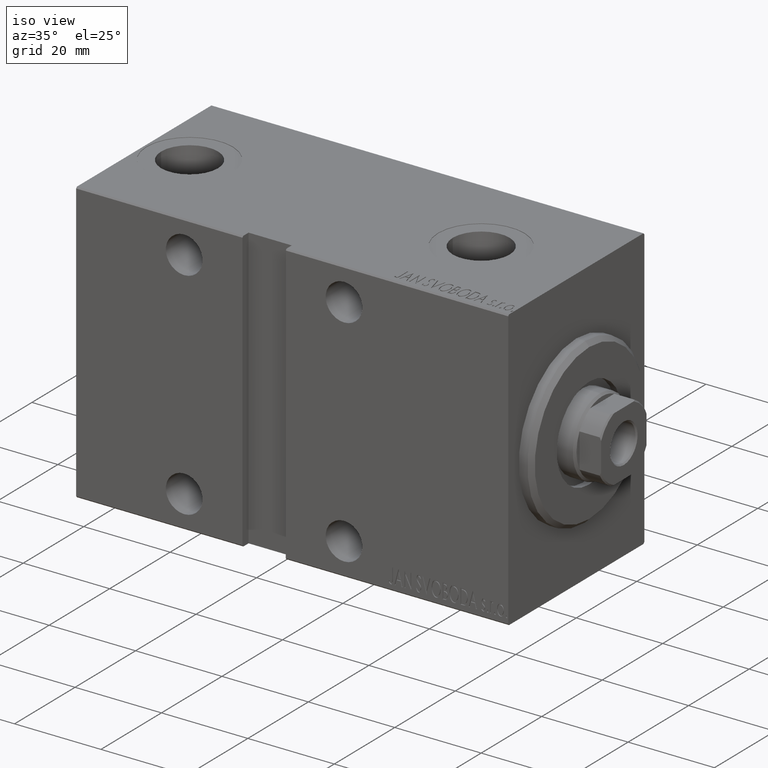
[diagram: clean part render]
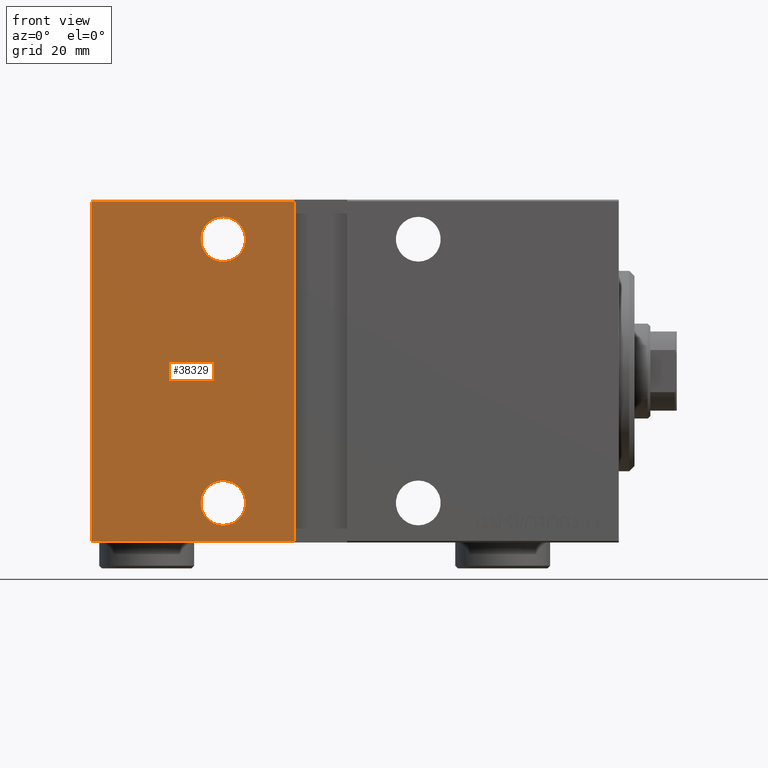
[diagram: tour spotlight — one face highlighted and labeled with its STEP entity id]
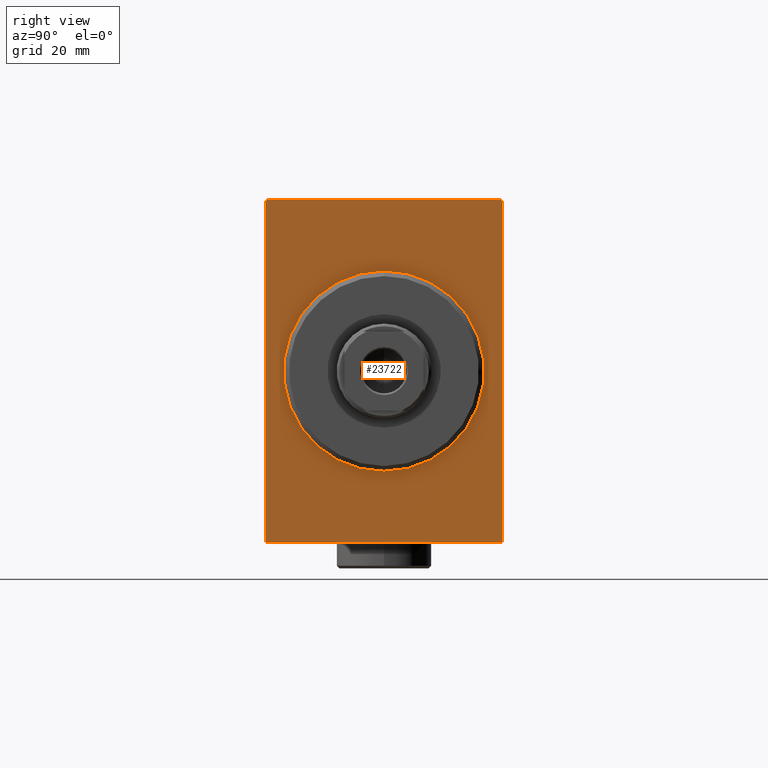
[diagram: tour spotlight — one face highlighted and labeled with its STEP entity id]
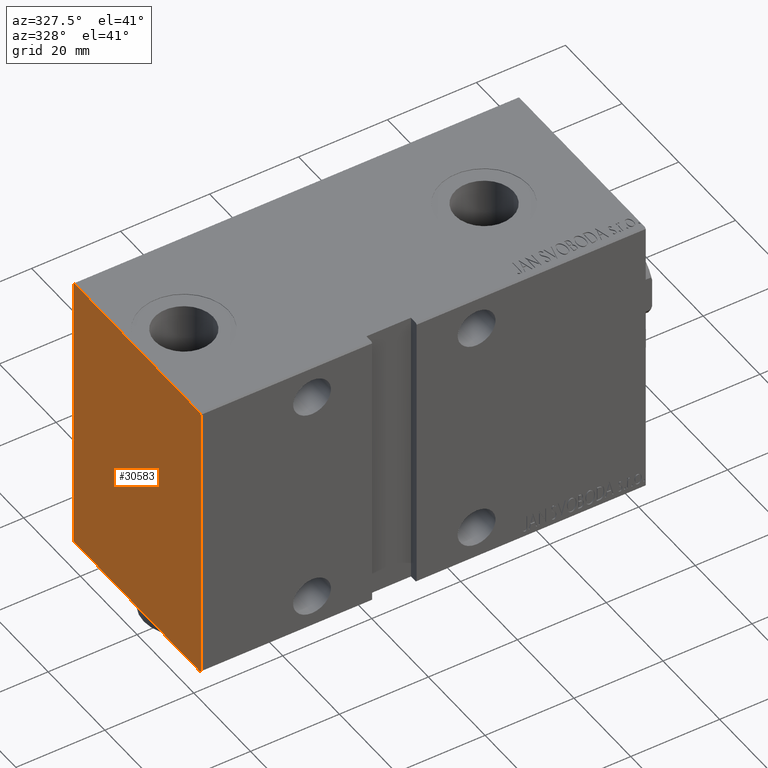
[diagram: tour spotlight — one face highlighted and labeled with its STEP entity id]
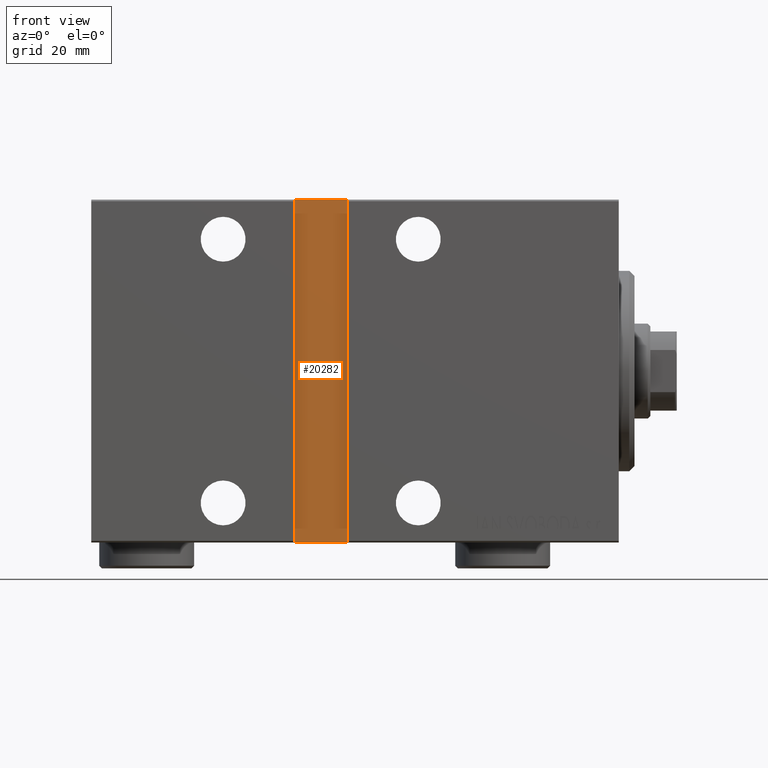
[diagram: tour spotlight — one face highlighted and labeled with its STEP entity id]
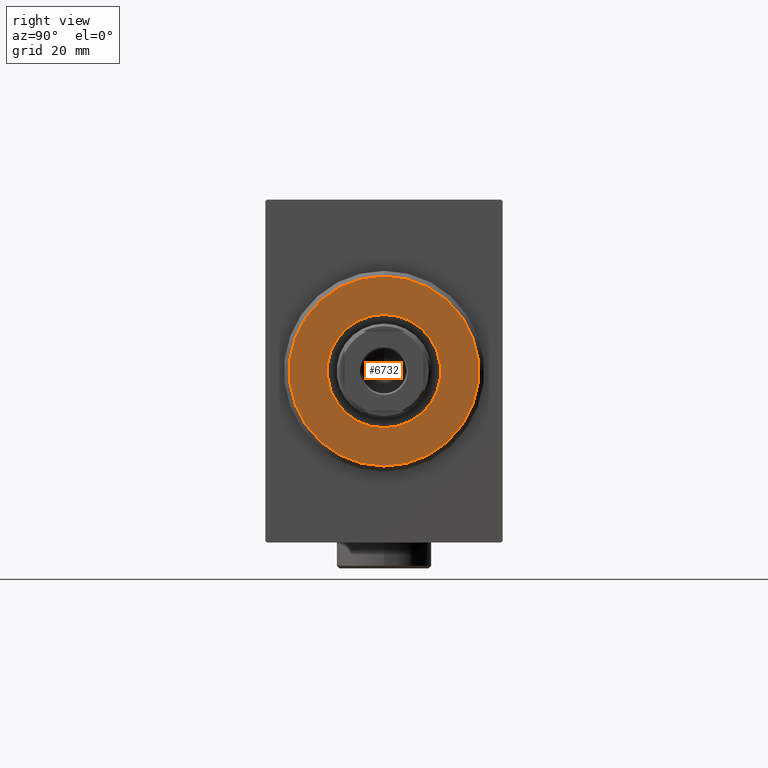
[diagram: tour spotlight — one face highlighted and labeled with its STEP entity id]
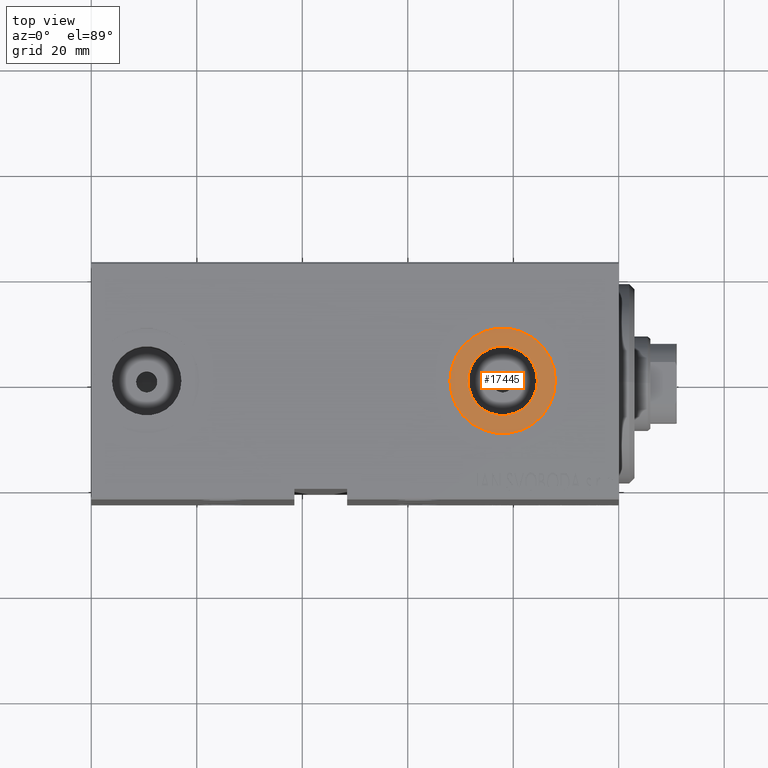
[diagram: tour spotlight — one face highlighted and labeled with its STEP entity id]
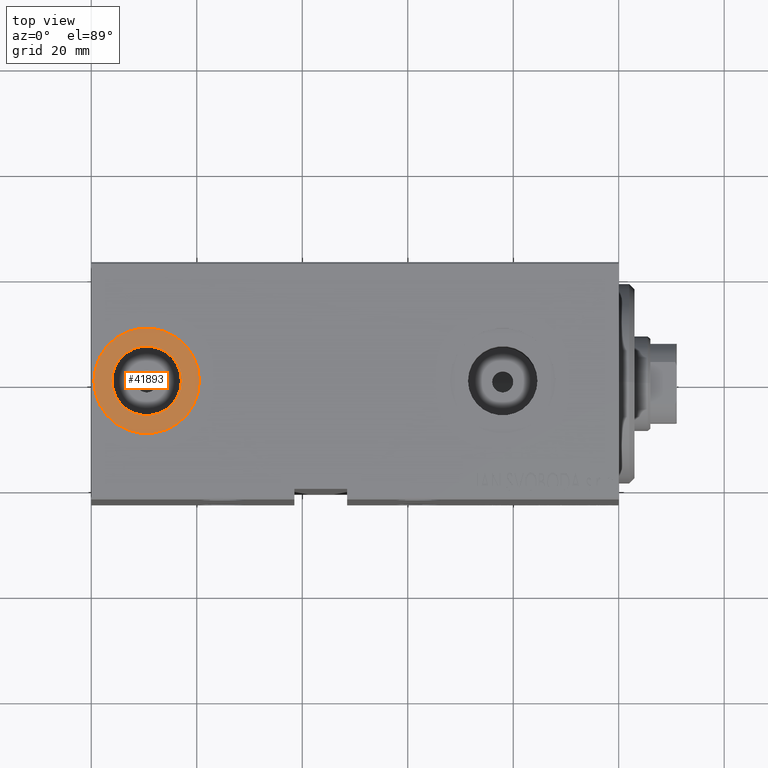
[diagram: tour spotlight — one face highlighted and labeled with its STEP entity id]
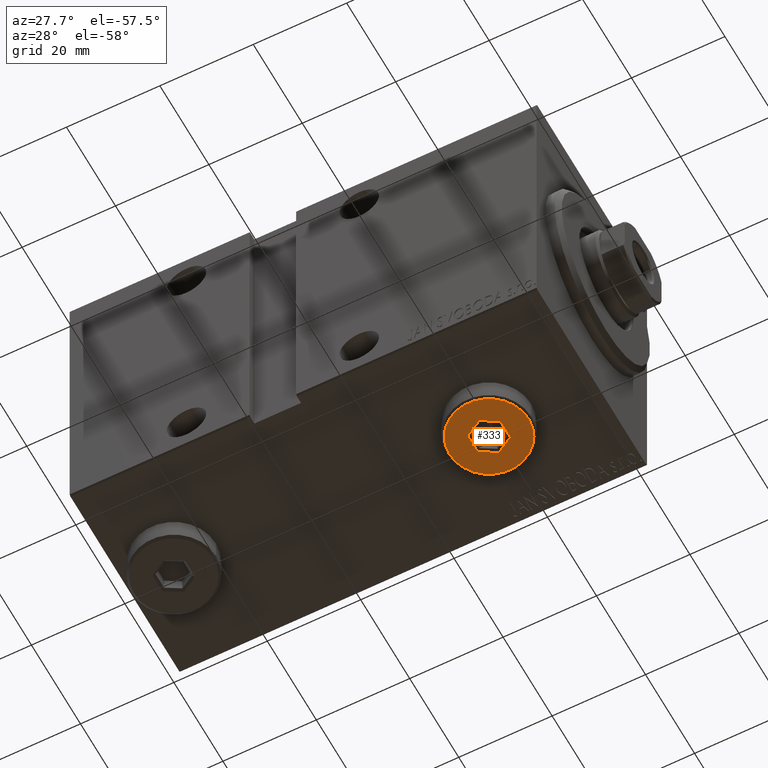
[diagram: tour spotlight — one face highlighted and labeled with its STEP entity id]
A machine part: a face-by-face anatomy tour. The part has 910 B-rep faces; the first image is the clean iso view, then the 8 largest visible faces are spotlighted one at a time (largest first), each with its STEP entity span.

Face 1 — front view, entity #38329. In plain terms, the highlighted planar face has unit normal (-0, 1, -0).
Definition (entity closure, byte-faithful):
#481 = ORIENTED_EDGE ( 'NONE', *, *, #11971, .T. ) ;
#963 = VECTOR ( 'NONE', #17823, 1000.000000000000000 ) ;
#2502 = LINE ( 'NONE', #16639, #18737 ) ;
#2863 = DIRECTION ( 'NONE',  ( 0.000000000000000000, 1.067522139062650425E-16, -1.000000000000000000 ) ) ;
#2949 = EDGE_CURVE ( 'NONE', #11771, #18945, #40380, .T. ) ;
#3146 = CARTESIAN_POINT ( 'NONE',  ( 75.00000000000001421, 22.50000000000000355, -20.74999999999999289 ) ) ;
#3225 = ORIENTED_EDGE ( 'NONE', *, *, #25154, .F. ) ;
#4456 = CARTESIAN_POINT ( 'NONE',  ( 75.00000000000001421, 22.50000000000000355, -24.99999999999999645 ) ) ;
#7932 = LINE ( 'NONE', #42534, #963 ) ;
#7950 = CARTESIAN_POINT ( 'NONE',  ( 75.00000000000001421, 22.49999999999999645, 20.75000000000000711 ) ) ;
#8953 = EDGE_LOOP ( 'NONE', ( #3225, #9044, #19598, #24880 ) ) ;
#9044 = ORIENTED_EDGE ( 'NONE', *, *, #41853, .T. ) ;
#9900 = DIRECTION ( 'NONE',  ( 0.000000000000000000, -1.067522139062650425E-16, 1.000000000000000000 ) ) ;
#11771 = VERTEX_POINT ( 'NONE', #30153 ) ;
#11971 = EDGE_CURVE ( 'NONE', #32949, #20351, #18537, .T. ) ;
#12045 = AXIS2_PLACEMENT_3D ( 'NONE', #29885, #36614, #19763 ) ;
#12170 = VERTEX_POINT ( 'NONE', #3146 ) ;
#12730 = FACE_OUTER_BOUND ( 'NONE', #8953, .T. ) ;
#12737 = DIRECTION ( 'NONE',  ( -0.000000000000000000, 1.067522139062650918E-16, -1.000000000000000000 ) ) ;
#15087 = VERTEX_POINT ( 'NONE', #18282 ) ;
#16339 = CARTESIAN_POINT ( 'NONE',  ( 61.50000000000001421, 22.50000000000000355, -32.49999999999995737 ) ) ;
#16551 = CARTESIAN_POINT ( 'NONE',  ( 100.0000000000000000, 22.50000000000000355, -32.50000000000000000 ) ) ;
#16639 = CARTESIAN_POINT ( 'NONE',  ( 100.0000000000000000, 22.50000000000000355, -32.50000000000000000 ) ) ;
#17393 = VERTEX_POINT ( 'NONE', #41120 ) ;
#17823 = DIRECTION ( 'NONE',  ( 1.000000000000000000, 0.000000000000000000, 0.000000000000000000 ) ) ;
#18105 = CARTESIAN_POINT ( 'NONE',  ( 61.50000000000001421, 22.50000000000000355, -32.19999999999998153 ) ) ;
#18282 = CARTESIAN_POINT ( 'NONE',  ( 100.0000000000000000, 22.49999999999999645, 32.19999999999998153 ) ) ;
#18537 = CIRCLE ( 'NONE', #12045, 4.250000000000003553 ) ;
#18737 = VECTOR ( 'NONE', #9900, 1000.000000000000000 ) ;
#18869 = CARTESIAN_POINT ( 'NONE',  ( 75.00000000000001421, 22.50000000000000355, -29.25000000000000000 ) ) ;
#18945 = VERTEX_POINT ( 'NONE', #18105 ) ;
#19598 = ORIENTED_EDGE ( 'NONE', *, *, #2949, .F. ) ;
#19740 = VECTOR ( 'NONE', #29818, 1000.000000000000000 ) ;
#19763 = DIRECTION ( 'NONE',  ( 0.000000000000000000, 0.000000000000000000, -1.000000000000000000 ) ) ;
#19818 = ORIENTED_EDGE ( 'NONE', *, *, #34326, .T. ) ;
#19844 = ORIENTED_EDGE ( 'NONE', *, *, #21559, .T. ) ;
#19919 = PLANE ( 'NONE',  #20387 ) ;
#20351 = VERTEX_POINT ( 'NONE', #7950 ) ;
#20387 = AXIS2_PLACEMENT_3D ( 'NONE', #16551, #33201, #2863 ) ;
#21112 = CARTESIAN_POINT ( 'NONE',  ( 75.00000000000001421, 22.50000000000000355, -24.99999999999999645 ) ) ;
#21559 = EDGE_CURVE ( 'NONE', #20351, #32949, #42325, .T. ) ;
#21730 = DIRECTION ( 'NONE',  ( 0.000000000000000000, -1.000000000000000000, -1.067522139062650425E-16 ) ) ;
#23142 = EDGE_LOOP ( 'NONE', ( #481, #19844 ) ) ;
#23145 = CIRCLE ( 'NONE', #33941, 4.250000000000003553 ) ;
#23290 = FACE_BOUND ( 'NONE', #23142, .T. ) ;
#24709 = DIRECTION ( 'NONE',  ( 0.000000000000000000, -1.000000000000000000, -1.067522139062650425E-16 ) ) ;
#24734 = VECTOR ( 'NONE', #12737, 1000.000000000000000 ) ;
#24880 = ORIENTED_EDGE ( 'NONE', *, *, #34994, .T. ) ;
#25154 = EDGE_CURVE ( 'NONE', #17393, #15087, #2502, .T. ) ;
#25802 = AXIS2_PLACEMENT_3D ( 'NONE', #27306, #29799, #37200 ) ;
#25923 = CIRCLE ( 'NONE', #37395, 4.250000000000003553 ) ;
#26357 = CARTESIAN_POINT ( 'NONE',  ( 75.00000000000001421, 22.49999999999999645, 29.25000000000001421 ) ) ;
#26445 = LINE ( 'NONE', #33417, #19740 ) ;
#27111 = FACE_BOUND ( 'NONE', #37387, .T. ) ;
#27306 = CARTESIAN_POINT ( 'NONE',  ( 75.00000000000001421, 22.49999999999999645, 25.00000000000001066 ) ) ;
#28481 = DIRECTION ( 'NONE',  ( 0.000000000000000000, 0.000000000000000000, -1.000000000000000000 ) ) ;
#29799 = DIRECTION ( 'NONE',  ( 0.000000000000000000, -1.000000000000000000, -1.067522139062650425E-16 ) ) ;
#29818 = DIRECTION ( 'NONE',  ( -1.000000000000000000, 0.000000000000000000, 0.000000000000000000 ) ) ;
#29885 = CARTESIAN_POINT ( 'NONE',  ( 75.00000000000001421, 22.49999999999999645, 25.00000000000001066 ) ) ;
#30058 = EDGE_CURVE ( 'NONE', #12170, #41508, #25923, .T. ) ;
#30153 = CARTESIAN_POINT ( 'NONE',  ( 61.50000000000001421, 22.49999999999999645, 32.19999999999998153 ) ) ;
#32949 = VERTEX_POINT ( 'NONE', #26357 ) ;
#33201 = DIRECTION ( 'NONE',  ( 0.000000000000000000, -1.000000000000000000, -1.067522139062650425E-16 ) ) ;
#33417 = CARTESIAN_POINT ( 'NONE',  ( 100.0000000000000000, 22.50000000000000355, -32.19999999999998153 ) ) ;
#33941 = AXIS2_PLACEMENT_3D ( 'NONE', #4456, #21730, #28481 ) ;
#34326 = EDGE_CURVE ( 'NONE', #41508, #12170, #23145, .T. ) ;
#34598 = DIRECTION ( 'NONE',  ( 0.000000000000000000, 0.000000000000000000, -1.000000000000000000 ) ) ;
#34994 = EDGE_CURVE ( 'NONE', #11771, #15087, #7932, .T. ) ;
#36614 = DIRECTION ( 'NONE',  ( 0.000000000000000000, -1.000000000000000000, -1.067522139062650425E-16 ) ) ;
#37200 = DIRECTION ( 'NONE',  ( 0.000000000000000000, 0.000000000000000000, -1.000000000000000000 ) ) ;
#37387 = EDGE_LOOP ( 'NONE', ( #41190, #19818 ) ) ;
#37395 = AXIS2_PLACEMENT_3D ( 'NONE', #21112, #24709, #34598 ) ;
#38329 = ADVANCED_FACE ( 'NONE', ( #27111, #23290, #12730 ), #19919, .F. ) ;
#40380 = LINE ( 'NONE', #16339, #24734 ) ;
#41120 = CARTESIAN_POINT ( 'NONE',  ( 100.0000000000000000, 22.50000000000000355, -32.19999999999998153 ) ) ;
#41190 = ORIENTED_EDGE ( 'NONE', *, *, #30058, .T. ) ;
#41508 = VERTEX_POINT ( 'NONE', #18869 ) ;
#41853 = EDGE_CURVE ( 'NONE', #17393, #18945, #26445, .T. ) ;
#42325 = CIRCLE ( 'NONE', #25802, 4.250000000000003553 ) ;
#42534 = CARTESIAN_POINT ( 'NONE',  ( 100.0000000000000000, 22.49999999999999645, 32.19999999999998153 ) ) ;

Face 2 — right view, entity #23722. In plain terms, the highlighted planar face has unit normal (-1, 0, 0).
Definition (entity closure, byte-faithful):
#486 = VECTOR ( 'NONE', #41249, 1000.000000000000114 ) ;
#1819 = LINE ( 'NONE', #12355, #7541 ) ;
#1983 = CARTESIAN_POINT ( 'NONE',  ( 0.000000000000000000, 22.50000000000000355, -32.19999999999998153 ) ) ;
#2043 = VECTOR ( 'NONE', #19328, 1000.000000000000114 ) ;
#2375 = EDGE_CURVE ( 'NONE', #22367, #28626, #33307, .T. ) ;
#3172 = DIRECTION ( 'NONE',  ( 0.000000000000000000, 0.000000000000000000, -1.000000000000000000 ) ) ;
#3394 = EDGE_CURVE ( 'NONE', #39692, #5322, #1819, .T. ) ;
#3642 = ORIENTED_EDGE ( 'NONE', *, *, #8353, .T. ) ;
#4740 = CARTESIAN_POINT ( 'NONE',  ( 0.000000000000000000, 22.49999999999999645, 32.19999999999998153 ) ) ;
#5322 = VERTEX_POINT ( 'NONE', #26232 ) ;
#5337 = DIRECTION ( 'NONE',  ( 0.000000000000000000, -1.067522139062650425E-16, 1.000000000000000000 ) ) ;
#5729 = LINE ( 'NONE', #19417, #20487 ) ;
#6196 = DIRECTION ( 'NONE',  ( 1.000000000000000000, 0.000000000000000000, 0.000000000000000000 ) ) ;
#6814 = ORIENTED_EDGE ( 'NONE', *, *, #16329, .T. ) ;
#7541 = VECTOR ( 'NONE', #15295, 1000.000000000000000 ) ;
#8353 = EDGE_CURVE ( 'NONE', #39692, #42336, #17425, .T. ) ;
#8640 = EDGE_LOOP ( 'NONE', ( #17272, #33033 ) ) ;
#8669 = AXIS2_PLACEMENT_3D ( 'NONE', #23037, #6196, #33609 ) ;
#8694 = LINE ( 'NONE', #22392, #15265 ) ;
#9260 = DIRECTION ( 'NONE',  ( 0.000000000000000000, -1.000000000000000000, -1.541976423090495633E-16 ) ) ;
#9307 = DIRECTION ( 'NONE',  ( 0.000000000000000000, 0.000000000000000000, -1.000000000000000000 ) ) ;
#10729 = CARTESIAN_POINT ( 'NONE',  ( 0.000000000000000000, 0.000000000000000000, 0.000000000000000000 ) ) ;
#12355 = CARTESIAN_POINT ( 'NONE',  ( 0.000000000000000000, -22.49999999999999645, -32.50000000000000000 ) ) ;
#12580 = CARTESIAN_POINT ( 'NONE',  ( 0.000000000000000000, 22.19999999999997442, 32.50000000000000711 ) ) ;
#13059 = CARTESIAN_POINT ( 'NONE',  ( 0.000000000000000000, 22.49999999999999645, 32.50000000000000711 ) ) ;
#13514 = CARTESIAN_POINT ( 'NONE',  ( 0.000000000000000000, -22.19999999999996021, 32.50000000000000000 ) ) ;
#14368 = VERTEX_POINT ( 'NONE', #37504 ) ;
#14988 = CARTESIAN_POINT ( 'NONE',  ( 0.000000000000000000, 22.50000000000000355, -32.19999999999998153 ) ) ;
#15265 = VECTOR ( 'NONE', #5337, 1000.000000000000000 ) ;
#15295 = DIRECTION ( 'NONE',  ( 0.000000000000000000, 1.000000000000000000, 0.000000000000000000 ) ) ;
#15395 = VECTOR ( 'NONE', #9260, 1000.000000000000000 ) ;
#15637 = ORIENTED_EDGE ( 'NONE', *, *, #39911, .T. ) ;
#16329 = EDGE_CURVE ( 'NONE', #22367, #23023, #42941, .T. ) ;
#17186 = FACE_OUTER_BOUND ( 'NONE', #29277, .T. ) ;
#17272 = ORIENTED_EDGE ( 'NONE', *, *, #24642, .T. ) ;
#17425 = LINE ( 'NONE', #27537, #486 ) ;
#18185 = ORIENTED_EDGE ( 'NONE', *, *, #3394, .F. ) ;
#18633 = DIRECTION ( 'NONE',  ( -0.000000000000000000, 0.7071067811865474617, 0.7071067811865474617 ) ) ;
#18975 = CARTESIAN_POINT ( 'NONE',  ( 0.000000000000000000, 22.19999999999997442, 32.50000000000000711 ) ) ;
#19328 = DIRECTION ( 'NONE',  ( -0.000000000000000000, 0.7071067811865392461, -0.7071067811865556774 ) ) ;
#19417 = CARTESIAN_POINT ( 'NONE',  ( 0.000000000000000000, -22.49999999999999645, 32.50000000000000000 ) ) ;
#19510 = CARTESIAN_POINT ( 'NONE',  ( 0.000000000000000000, -22.19999999999997442, -32.50000000000000000 ) ) ;
#20129 = ORIENTED_EDGE ( 'NONE', *, *, #41126, .F. ) ;
#20487 = VECTOR ( 'NONE', #9307, 1000.000000000000000 ) ;
#21068 = DIRECTION ( 'NONE',  ( 0.000000000000000000, -0.7071067811865474617, -0.7071067811865474617 ) ) ;
#21102 = EDGE_CURVE ( 'NONE', #21622, #28626, #43345, .T. ) ;
#21622 = VERTEX_POINT ( 'NONE', #38759 ) ;
#21830 = VERTEX_POINT ( 'NONE', #28151 ) ;
#22367 = VERTEX_POINT ( 'NONE', #18975 ) ;
#22392 = CARTESIAN_POINT ( 'NONE',  ( 0.000000000000000000, 22.50000000000000355, -32.50000000000000000 ) ) ;
#22995 = AXIS2_PLACEMENT_3D ( 'NONE', #10729, #41289, #41743 ) ;
#23023 = VERTEX_POINT ( 'NONE', #4740 ) ;
#23037 = CARTESIAN_POINT ( 'NONE',  ( 0.000000000000000000, 0.000000000000000000, 0.000000000000000000 ) ) ;
#23722 = ADVANCED_FACE ( 'NONE', ( #36965, #17186 ), #40122, .F. ) ;
#24275 = DIRECTION ( 'NONE',  ( 1.000000000000000000, 0.000000000000000000, 0.000000000000000000 ) ) ;
#24642 = EDGE_CURVE ( 'NONE', #14368, #21830, #42392, .T. ) ;
#24893 = LINE ( 'NONE', #14988, #32658 ) ;
#26232 = CARTESIAN_POINT ( 'NONE',  ( 0.000000000000000000, 22.19999999999996732, -32.50000000000000000 ) ) ;
#27537 = CARTESIAN_POINT ( 'NONE',  ( 0.000000000000000000, -22.19999999999997442, -32.50000000000000000 ) ) ;
#28151 = CARTESIAN_POINT ( 'NONE',  ( 0.000000000000000000, 2.265596578422602213E-15, -18.49999999999998934 ) ) ;
#28626 = VERTEX_POINT ( 'NONE', #13514 ) ;
#29193 = CARTESIAN_POINT ( 'NONE',  ( 0.000000000000000000, -22.49999999999999645, 32.19999999999998153 ) ) ;
#29277 = EDGE_LOOP ( 'NONE', ( #38034, #6814, #30832, #15637, #18185, #3642, #20129, #33410 ) ) ;
#30832 = ORIENTED_EDGE ( 'NONE', *, *, #34444, .F. ) ;
#32658 = VECTOR ( 'NONE', #21068, 1000.000000000000114 ) ;
#33033 = ORIENTED_EDGE ( 'NONE', *, *, #40306, .T. ) ;
#33307 = LINE ( 'NONE', #13059, #15395 ) ;
#33410 = ORIENTED_EDGE ( 'NONE', *, *, #21102, .T. ) ;
#33609 = DIRECTION ( 'NONE',  ( 0.000000000000000000, 0.000000000000000000, -1.000000000000000000 ) ) ;
#34023 = CARTESIAN_POINT ( 'NONE',  ( 0.000000000000000000, -22.49999999999999645, -32.19999999999998153 ) ) ;
#34444 = EDGE_CURVE ( 'NONE', #39131, #23023, #8694, .T. ) ;
#36237 = CIRCLE ( 'NONE', #41244, 18.49999999999998934 ) ;
#36965 = FACE_BOUND ( 'NONE', #8640, .T. ) ;
#37504 = CARTESIAN_POINT ( 'NONE',  ( 0.000000000000000000, 0.000000000000000000, 18.49999999999998934 ) ) ;
#38034 = ORIENTED_EDGE ( 'NONE', *, *, #2375, .F. ) ;
#38759 = CARTESIAN_POINT ( 'NONE',  ( 0.000000000000000000, -22.49999999999999645, 32.19999999999998153 ) ) ;
#39131 = VERTEX_POINT ( 'NONE', #1983 ) ;
#39472 = VECTOR ( 'NONE', #18633, 1000.000000000000114 ) ;
#39692 = VERTEX_POINT ( 'NONE', #19510 ) ;
#39911 = EDGE_CURVE ( 'NONE', #39131, #5322, #24893, .T. ) ;
#40122 = PLANE ( 'NONE',  #8669 ) ;
#40306 = EDGE_CURVE ( 'NONE', #21830, #14368, #36237, .T. ) ;
#41126 = EDGE_CURVE ( 'NONE', #21622, #42336, #5729, .T. ) ;
#41135 = CARTESIAN_POINT ( 'NONE',  ( 0.000000000000000000, 0.000000000000000000, 0.000000000000000000 ) ) ;
#41244 = AXIS2_PLACEMENT_3D ( 'NONE', #41135, #24275, #3172 ) ;
#41249 = DIRECTION ( 'NONE',  ( -0.000000000000000000, -0.7071067811865474617, 0.7071067811865474617 ) ) ;
#41289 = DIRECTION ( 'NONE',  ( 1.000000000000000000, 0.000000000000000000, 0.000000000000000000 ) ) ;
#41743 = DIRECTION ( 'NONE',  ( 0.000000000000000000, 0.000000000000000000, -1.000000000000000000 ) ) ;
#42336 = VERTEX_POINT ( 'NONE', #34023 ) ;
#42392 = CIRCLE ( 'NONE', #22995, 18.49999999999998934 ) ;
#42941 = LINE ( 'NONE', #12580, #2043 ) ;
#43345 = LINE ( 'NONE', #29193, #39472 ) ;

Face 3 — auxiliary view, entity #30583. In plain terms, the highlighted planar face has unit normal (-1, 0, 0).
Definition (entity closure, byte-faithful):
#17 = LINE ( 'NONE', #34846, #17477 ) ;
#544 = LINE ( 'NONE', #42119, #27845 ) ;
#2495 = EDGE_LOOP ( 'NONE', ( #22962, #31943, #42704, #38968, #34360, #26947, #12865, #17148 ) ) ;
#2502 = LINE ( 'NONE', #16639, #18737 ) ;
#3076 = CARTESIAN_POINT ( 'NONE',  ( 100.0000000000000000, -22.49999999999999645, -32.19999999999998153 ) ) ;
#3197 = DIRECTION ( 'NONE',  ( 0.000000000000000000, 1.000000000000000000, 0.000000000000000000 ) ) ;
#3213 = EDGE_CURVE ( 'NONE', #8605, #30556, #10155, .T. ) ;
#4480 = VERTEX_POINT ( 'NONE', #3076 ) ;
#7554 = LINE ( 'NONE', #31595, #24794 ) ;
#8605 = VERTEX_POINT ( 'NONE', #43689 ) ;
#9900 = DIRECTION ( 'NONE',  ( 0.000000000000000000, -1.067522139062650425E-16, 1.000000000000000000 ) ) ;
#10155 = LINE ( 'NONE', #26786, #10396 ) ;
#10396 = VECTOR ( 'NONE', #19814, 1000.000000000000114 ) ;
#11146 = DIRECTION ( 'NONE',  ( -0.000000000000000000, 0.7071067811865474617, 0.7071067811865474617 ) ) ;
#11665 = VECTOR ( 'NONE', #11709, 1000.000000000000000 ) ;
#11709 = DIRECTION ( 'NONE',  ( 0.000000000000000000, -1.000000000000000000, -1.541976423090495633E-16 ) ) ;
#11766 = FACE_OUTER_BOUND ( 'NONE', #2495, .T. ) ;
#11793 = EDGE_CURVE ( 'NONE', #13638, #19884, #26120, .T. ) ;
#12865 = ORIENTED_EDGE ( 'NONE', *, *, #16004, .T. ) ;
#13638 = VERTEX_POINT ( 'NONE', #22621 ) ;
#13709 = DIRECTION ( 'NONE',  ( -0.000000000000000000, -0.7071067811865392461, 0.7071067811865556774 ) ) ;
#15087 = VERTEX_POINT ( 'NONE', #18282 ) ;
#15964 = EDGE_CURVE ( 'NONE', #4480, #13638, #21880, .T. ) ;
#16004 = EDGE_CURVE ( 'NONE', #30556, #4480, #544, .T. ) ;
#16350 = VECTOR ( 'NONE', #17622, 1000.000000000000114 ) ;
#16639 = CARTESIAN_POINT ( 'NONE',  ( 100.0000000000000000, 22.50000000000000355, -32.50000000000000000 ) ) ;
#17148 = ORIENTED_EDGE ( 'NONE', *, *, #15964, .T. ) ;
#17393 = VERTEX_POINT ( 'NONE', #41120 ) ;
#17477 = VECTOR ( 'NONE', #13709, 1000.000000000000114 ) ;
#17622 = DIRECTION ( 'NONE',  ( -0.000000000000000000, 0.7071067811865474617, -0.7071067811865474617 ) ) ;
#17690 = VERTEX_POINT ( 'NONE', #26692 ) ;
#18282 = CARTESIAN_POINT ( 'NONE',  ( 100.0000000000000000, 22.49999999999999645, 32.19999999999998153 ) ) ;
#18737 = VECTOR ( 'NONE', #9900, 1000.000000000000000 ) ;
#19814 = DIRECTION ( 'NONE',  ( 0.000000000000000000, -0.7071067811865474617, -0.7071067811865474617 ) ) ;
#19884 = VERTEX_POINT ( 'NONE', #28892 ) ;
#21671 = CARTESIAN_POINT ( 'NONE',  ( 100.0000000000000000, 0.000000000000000000, 0.000000000000000000 ) ) ;
#21880 = LINE ( 'NONE', #38516, #16350 ) ;
#22621 = CARTESIAN_POINT ( 'NONE',  ( 100.0000000000000000, -22.19999999999997442, -32.50000000000000000 ) ) ;
#22962 = ORIENTED_EDGE ( 'NONE', *, *, #11793, .T. ) ;
#24794 = VECTOR ( 'NONE', #11146, 1000.000000000000114 ) ;
#25154 = EDGE_CURVE ( 'NONE', #17393, #15087, #2502, .T. ) ;
#25490 = DIRECTION ( 'NONE',  ( 0.000000000000000000, 0.000000000000000000, -1.000000000000000000 ) ) ;
#26120 = LINE ( 'NONE', #36884, #35037 ) ;
#26692 = CARTESIAN_POINT ( 'NONE',  ( 100.0000000000000000, 22.19999999999997442, 32.50000000000000711 ) ) ;
#26786 = CARTESIAN_POINT ( 'NONE',  ( 100.0000000000000000, -27.34999999999998721, 27.34999999999998721 ) ) ;
#26947 = ORIENTED_EDGE ( 'NONE', *, *, #3213, .T. ) ;
#27845 = VECTOR ( 'NONE', #35146, 1000.000000000000000 ) ;
#28801 = LINE ( 'NONE', #29022, #11665 ) ;
#28892 = CARTESIAN_POINT ( 'NONE',  ( 100.0000000000000000, 22.19999999999996732, -32.50000000000000000 ) ) ;
#29022 = CARTESIAN_POINT ( 'NONE',  ( 100.0000000000000000, 22.49999999999999645, 32.50000000000000711 ) ) ;
#30556 = VERTEX_POINT ( 'NONE', #32236 ) ;
#30583 = ADVANCED_FACE ( 'NONE', ( #11766 ), #31789, .T. ) ;
#31595 = CARTESIAN_POINT ( 'NONE',  ( 100.0000000000000000, 27.34999999999999076, -27.34999999999999076 ) ) ;
#31789 = PLANE ( 'NONE',  #43889 ) ;
#31943 = ORIENTED_EDGE ( 'NONE', *, *, #42104, .T. ) ;
#32236 = CARTESIAN_POINT ( 'NONE',  ( 100.0000000000000000, -22.49999999999999645, 32.19999999999998153 ) ) ;
#34026 = EDGE_CURVE ( 'NONE', #17690, #8605, #28801, .T. ) ;
#34360 = ORIENTED_EDGE ( 'NONE', *, *, #34026, .T. ) ;
#34846 = CARTESIAN_POINT ( 'NONE',  ( 100.0000000000000000, 27.35000000000025011, 27.34999999999961418 ) ) ;
#35037 = VECTOR ( 'NONE', #3197, 1000.000000000000000 ) ;
#35146 = DIRECTION ( 'NONE',  ( 0.000000000000000000, 0.000000000000000000, -1.000000000000000000 ) ) ;
#35376 = DIRECTION ( 'NONE',  ( 1.000000000000000000, 0.000000000000000000, 0.000000000000000000 ) ) ;
#36884 = CARTESIAN_POINT ( 'NONE',  ( 100.0000000000000000, -22.49999999999999645, -32.50000000000000000 ) ) ;
#37063 = EDGE_CURVE ( 'NONE', #15087, #17690, #17, .T. ) ;
#38516 = CARTESIAN_POINT ( 'NONE',  ( 100.0000000000000000, -27.34999999999998721, -27.34999999999998721 ) ) ;
#38968 = ORIENTED_EDGE ( 'NONE', *, *, #37063, .T. ) ;
#41120 = CARTESIAN_POINT ( 'NONE',  ( 100.0000000000000000, 22.50000000000000355, -32.19999999999998153 ) ) ;
#42104 = EDGE_CURVE ( 'NONE', #19884, #17393, #7554, .T. ) ;
#42119 = CARTESIAN_POINT ( 'NONE',  ( 100.0000000000000000, -22.49999999999999645, 32.50000000000000000 ) ) ;
#42704 = ORIENTED_EDGE ( 'NONE', *, *, #25154, .T. ) ;
#43689 = CARTESIAN_POINT ( 'NONE',  ( 100.0000000000000000, -22.19999999999996021, 32.50000000000000000 ) ) ;
#43889 = AXIS2_PLACEMENT_3D ( 'NONE', #21671, #35376, #25490 ) ;

Face 4 — front view, entity #20282. In plain terms, the highlighted planar face has unit normal (-0, 1, -0).
Definition (entity closure, byte-faithful):
#1007 = CARTESIAN_POINT ( 'NONE',  ( 61.50000000000001421, 20.49999999999999645, 32.50000000000000711 ) ) ;
#2187 = DIRECTION ( 'NONE',  ( 0.000000000000000000, -1.067522139062650918E-16, 1.000000000000000000 ) ) ;
#3843 = ORIENTED_EDGE ( 'NONE', *, *, #38348, .T. ) ;
#6766 = VECTOR ( 'NONE', #9816, 1000.000000000000000 ) ;
#7278 = CARTESIAN_POINT ( 'NONE',  ( 61.50000000000001421, 20.50000000000000355, -32.49999999999995737 ) ) ;
#8207 = EDGE_CURVE ( 'NONE', #9837, #9597, #19243, .T. ) ;
#9096 = CARTESIAN_POINT ( 'NONE',  ( 51.50000000000000711, 20.49999999999999645, 32.50000000000000711 ) ) ;
#9597 = VERTEX_POINT ( 'NONE', #9096 ) ;
#9816 = DIRECTION ( 'NONE',  ( -1.000000000000000000, 0.000000000000000000, 0.000000000000000000 ) ) ;
#9837 = VERTEX_POINT ( 'NONE', #24574 ) ;
#12432 = CARTESIAN_POINT ( 'NONE',  ( 61.50000000000001421, 20.50000000000000711, -32.50000000000000000 ) ) ;
#14899 = FACE_OUTER_BOUND ( 'NONE', #26465, .T. ) ;
#15126 = DIRECTION ( 'NONE',  ( 0.000000000000000000, -1.000000000000000000, -1.067522139062650918E-16 ) ) ;
#15208 = EDGE_CURVE ( 'NONE', #42282, #24693, #24580, .T. ) ;
#16331 = CARTESIAN_POINT ( 'NONE',  ( 61.50000000000001421, 20.50000000000000355, -32.49999999999995737 ) ) ;
#18304 = LINE ( 'NONE', #1007, #41774 ) ;
#19243 = LINE ( 'NONE', #32968, #36363 ) ;
#20282 = ADVANCED_FACE ( 'NONE', ( #14899 ), #25026, .F. ) ;
#20752 = AXIS2_PLACEMENT_3D ( 'NONE', #24806, #15126, #31988 ) ;
#22858 = ORIENTED_EDGE ( 'NONE', *, *, #31454, .T. ) ;
#24574 = CARTESIAN_POINT ( 'NONE',  ( 51.50000000000000711, 20.50000000000000355, -32.49999999999995737 ) ) ;
#24580 = LINE ( 'NONE', #7278, #42919 ) ;
#24693 = VERTEX_POINT ( 'NONE', #12432 ) ;
#24806 = CARTESIAN_POINT ( 'NONE',  ( 0.000000000000000000, 20.49999999999999645, 2.149601398203428657E-15 ) ) ;
#25026 = PLANE ( 'NONE',  #20752 ) ;
#26465 = EDGE_LOOP ( 'NONE', ( #36906, #22858, #42510, #3843 ) ) ;
#28864 = DIRECTION ( 'NONE',  ( 1.000000000000000000, -0.000000000000000000, -0.000000000000000000 ) ) ;
#31454 = EDGE_CURVE ( 'NONE', #9597, #42282, #18304, .T. ) ;
#31549 = DIRECTION ( 'NONE',  ( -0.000000000000000000, 1.067522139062650918E-16, -1.000000000000000000 ) ) ;
#31988 = DIRECTION ( 'NONE',  ( 0.000000000000000000, 1.067522139062650918E-16, -1.000000000000000000 ) ) ;
#32968 = CARTESIAN_POINT ( 'NONE',  ( 51.50000000000000711, 20.50000000000000355, -32.49999999999995737 ) ) ;
#36363 = VECTOR ( 'NONE', #2187, 1000.000000000000000 ) ;
#36906 = ORIENTED_EDGE ( 'NONE', *, *, #8207, .T. ) ;
#37161 = CARTESIAN_POINT ( 'NONE',  ( 61.50000000000001421, 20.49999999999999645, 32.50000000000000711 ) ) ;
#38348 = EDGE_CURVE ( 'NONE', #24693, #9837, #40596, .T. ) ;
#40596 = LINE ( 'NONE', #16331, #6766 ) ;
#41774 = VECTOR ( 'NONE', #28864, 1000.000000000000000 ) ;
#42282 = VERTEX_POINT ( 'NONE', #37161 ) ;
#42510 = ORIENTED_EDGE ( 'NONE', *, *, #15208, .T. ) ;
#42919 = VECTOR ( 'NONE', #31549, 1000.000000000000000 ) ;

Face 5 — right view, entity #6732. In plain terms, the highlighted planar face has unit normal (1, 0, 0).
Definition (entity closure, byte-faithful):
#49 = FACE_OUTER_BOUND ( 'NONE', #12290, .T. ) ;
#164 = AXIS2_PLACEMENT_3D ( 'NONE', #41275, #14080, #24421 ) ;
#950 = DIRECTION ( 'NONE',  ( 1.000000000000000000, -0.000000000000000000, 0.000000000000000000 ) ) ;
#1811 = CARTESIAN_POINT ( 'NONE',  ( 3.000000000000000000, 2.265596578422603002E-15, -17.99999999999999645 ) ) ;
#1989 = CARTESIAN_POINT ( 'NONE',  ( 3.000000000000000000, 1.316495309083404223E-15, -10.75000000000000000 ) ) ;
#2491 = EDGE_CURVE ( 'NONE', #4815, #11326, #13944, .T. ) ;
#2771 = DIRECTION ( 'NONE',  ( 1.000000000000000000, -0.000000000000000000, 0.000000000000000000 ) ) ;
#4815 = VERTEX_POINT ( 'NONE', #1811 ) ;
#5217 = CIRCLE ( 'NONE', #164, 10.75000000000000000 ) ;
#6010 = VERTEX_POINT ( 'NONE', #1989 ) ;
#6060 = ORIENTED_EDGE ( 'NONE', *, *, #2491, .T. ) ;
#6078 = ORIENTED_EDGE ( 'NONE', *, *, #29319, .T. ) ;
#6732 = ADVANCED_FACE ( 'NONE', ( #49, #43883 ), #23647, .T. ) ;
#8138 = CARTESIAN_POINT ( 'NONE',  ( 3.000000000000000000, 0.000000000000000000, 10.75000000000000000 ) ) ;
#10850 = EDGE_CURVE ( 'NONE', #24151, #6010, #13463, .T. ) ;
#11282 = DIRECTION ( 'NONE',  ( 0.000000000000000000, 0.000000000000000000, -1.000000000000000000 ) ) ;
#11326 = VERTEX_POINT ( 'NONE', #36503 ) ;
#12290 = EDGE_LOOP ( 'NONE', ( #25181, #6060 ) ) ;
#13350 = ORIENTED_EDGE ( 'NONE', *, *, #10850, .T. ) ;
#13463 = CIRCLE ( 'NONE', #24960, 10.75000000000000000 ) ;
#13944 = CIRCLE ( 'NONE', #16104, 17.99999999999999645 ) ;
#14080 = DIRECTION ( 'NONE',  ( -1.000000000000000000, 0.000000000000000000, -0.000000000000000000 ) ) ;
#16104 = AXIS2_PLACEMENT_3D ( 'NONE', #24745, #20697, #24971 ) ;
#20697 = DIRECTION ( 'NONE',  ( 1.000000000000000000, -0.000000000000000000, 0.000000000000000000 ) ) ;
#23049 = CIRCLE ( 'NONE', #40285, 17.99999999999999645 ) ;
#23624 = CARTESIAN_POINT ( 'NONE',  ( 3.000000000000000000, 0.000000000000000000, 0.000000000000000000 ) ) ;
#23647 = PLANE ( 'NONE',  #24872 ) ;
#24151 = VERTEX_POINT ( 'NONE', #8138 ) ;
#24421 = DIRECTION ( 'NONE',  ( 0.000000000000000000, 0.000000000000000000, -1.000000000000000000 ) ) ;
#24745 = CARTESIAN_POINT ( 'NONE',  ( 3.000000000000000000, 0.000000000000000000, 0.000000000000000000 ) ) ;
#24872 = AXIS2_PLACEMENT_3D ( 'NONE', #41396, #2771, #27688 ) ;
#24960 = AXIS2_PLACEMENT_3D ( 'NONE', #23624, #34858, #27441 ) ;
#24971 = DIRECTION ( 'NONE',  ( 0.000000000000000000, 0.000000000000000000, -1.000000000000000000 ) ) ;
#25181 = ORIENTED_EDGE ( 'NONE', *, *, #30860, .T. ) ;
#27441 = DIRECTION ( 'NONE',  ( 0.000000000000000000, 0.000000000000000000, -1.000000000000000000 ) ) ;
#27688 = DIRECTION ( 'NONE',  ( 0.000000000000000000, 0.000000000000000000, -1.000000000000000000 ) ) ;
#29319 = EDGE_CURVE ( 'NONE', #6010, #24151, #5217, .T. ) ;
#30275 = EDGE_LOOP ( 'NONE', ( #13350, #6078 ) ) ;
#30860 = EDGE_CURVE ( 'NONE', #11326, #4815, #23049, .T. ) ;
#31737 = CARTESIAN_POINT ( 'NONE',  ( 3.000000000000000000, 0.000000000000000000, 0.000000000000000000 ) ) ;
#34858 = DIRECTION ( 'NONE',  ( -1.000000000000000000, 0.000000000000000000, -0.000000000000000000 ) ) ;
#36503 = CARTESIAN_POINT ( 'NONE',  ( 3.000000000000000000, 0.000000000000000000, 17.99999999999999645 ) ) ;
#40285 = AXIS2_PLACEMENT_3D ( 'NONE', #31737, #950, #11282 ) ;
#41275 = CARTESIAN_POINT ( 'NONE',  ( 3.000000000000000000, 0.000000000000000000, 0.000000000000000000 ) ) ;
#41396 = CARTESIAN_POINT ( 'NONE',  ( 3.000000000000000000, 0.000000000000000000, 0.000000000000000000 ) ) ;
#43883 = FACE_BOUND ( 'NONE', #30275, .T. ) ;

Face 6 — top view, entity #17445. In plain terms, the highlighted planar face has unit normal (0, 0, 1).
Definition (entity closure, byte-faithful):
#502 = EDGE_LOOP ( 'NONE', ( #34750, #14495 ) ) ;
#1731 = AXIS2_PLACEMENT_3D ( 'NONE', #10141, #13052, #2516 ) ;
#2060 = AXIS2_PLACEMENT_3D ( 'NONE', #40029, #5881, #15557 ) ;
#2516 = DIRECTION ( 'NONE',  ( 1.000000000000000000, 0.000000000000000000, 0.000000000000000000 ) ) ;
#4246 = CARTESIAN_POINT ( 'NONE',  ( 15.41999999999999993, -4.205605781205153147E-15, 32.39999999999999858 ) ) ;
#4284 = DIRECTION ( 'NONE',  ( 1.000000000000000000, 0.000000000000000000, -0.000000000000000000 ) ) ;
#4961 = DIRECTION ( 'NONE',  ( 0.000000000000000000, 0.000000000000000000, 1.000000000000000000 ) ) ;
#5699 = CARTESIAN_POINT ( 'NONE',  ( 11.99999999999999822, -3.786776575896758341E-15, 32.39999999999999858 ) ) ;
#5881 = DIRECTION ( 'NONE',  ( 0.000000000000000000, 0.000000000000000000, 1.000000000000000000 ) ) ;
#6327 = EDGE_LOOP ( 'NONE', ( #36299, #26903 ) ) ;
#7064 = VERTEX_POINT ( 'NONE', #39089 ) ;
#7641 = FACE_BOUND ( 'NONE', #502, .T. ) ;
#7906 = AXIS2_PLACEMENT_3D ( 'NONE', #15720, #4961, #32364 ) ;
#9940 = VERTEX_POINT ( 'NONE', #4246 ) ;
#10141 = CARTESIAN_POINT ( 'NONE',  ( 22.00000000000000000, -5.011423375044111400E-15, 32.39999999999999858 ) ) ;
#13052 = DIRECTION ( 'NONE',  ( 0.000000000000000000, 0.000000000000000000, 1.000000000000000000 ) ) ;
#13103 = EDGE_CURVE ( 'NONE', #28417, #27914, #38654, .T. ) ;
#14370 = FACE_OUTER_BOUND ( 'NONE', #6327, .T. ) ;
#14495 = ORIENTED_EDGE ( 'NONE', *, *, #22993, .F. ) ;
#15557 = DIRECTION ( 'NONE',  ( 1.000000000000000000, 0.000000000000000000, 0.000000000000000000 ) ) ;
#15720 = CARTESIAN_POINT ( 'NONE',  ( 22.00000000000000000, -5.011423375044111400E-15, 32.39999999999999858 ) ) ;
#16035 = CIRCLE ( 'NONE', #1731, 10.00000000000000178 ) ;
#17445 = ADVANCED_FACE ( 'NONE', ( #7641, #14370 ), #17974, .T. ) ;
#17974 = PLANE ( 'NONE',  #24283 ) ;
#18121 = DIRECTION ( 'NONE',  ( 0.000000000000000000, 0.000000000000000000, 1.000000000000000000 ) ) ;
#21838 = CIRCLE ( 'NONE', #41965, 6.579999999999999183 ) ;
#22993 = EDGE_CURVE ( 'NONE', #9940, #7064, #29418, .T. ) ;
#24283 = AXIS2_PLACEMENT_3D ( 'NONE', #34603, #35051, #4284 ) ;
#26903 = ORIENTED_EDGE ( 'NONE', *, *, #13103, .T. ) ;
#27560 = CARTESIAN_POINT ( 'NONE',  ( 32.00000000000000000, -5.011423375044111400E-15, 32.39999999999999858 ) ) ;
#27914 = VERTEX_POINT ( 'NONE', #27560 ) ;
#28417 = VERTEX_POINT ( 'NONE', #5699 ) ;
#29418 = CIRCLE ( 'NONE', #7906, 6.579999999999999183 ) ;
#32279 = CARTESIAN_POINT ( 'NONE',  ( 22.00000000000000000, -5.011423375044111400E-15, 32.39999999999999858 ) ) ;
#32364 = DIRECTION ( 'NONE',  ( 1.000000000000000000, 0.000000000000000000, 0.000000000000000000 ) ) ;
#34603 = CARTESIAN_POINT ( 'NONE',  ( 22.00000000000000000, -5.011423375044111400E-15, 32.39999999999999858 ) ) ;
#34750 = ORIENTED_EDGE ( 'NONE', *, *, #39433, .F. ) ;
#35051 = DIRECTION ( 'NONE',  ( 0.000000000000000000, 0.000000000000000000, 1.000000000000000000 ) ) ;
#36299 = ORIENTED_EDGE ( 'NONE', *, *, #37741, .T. ) ;
#37741 = EDGE_CURVE ( 'NONE', #27914, #28417, #16035, .T. ) ;
#38654 = CIRCLE ( 'NONE', #2060, 10.00000000000000178 ) ;
#39089 = CARTESIAN_POINT ( 'NONE',  ( 28.57999999999999829, -5.011423375044111400E-15, 32.39999999999999858 ) ) ;
#39236 = DIRECTION ( 'NONE',  ( 1.000000000000000000, 0.000000000000000000, 0.000000000000000000 ) ) ;
#39433 = EDGE_CURVE ( 'NONE', #7064, #9940, #21838, .T. ) ;
#40029 = CARTESIAN_POINT ( 'NONE',  ( 22.00000000000000000, -5.011423375044111400E-15, 32.39999999999999858 ) ) ;
#41965 = AXIS2_PLACEMENT_3D ( 'NONE', #32279, #18121, #39236 ) ;

Face 7 — top view, entity #41893. In plain terms, the highlighted planar face has unit normal (0, 0, 1).
Definition (entity closure, byte-faithful):
#575 = CIRCLE ( 'NONE', #40063, 6.580000000000002736 ) ;
#1039 = EDGE_CURVE ( 'NONE', #6805, #13900, #11070, .T. ) ;
#1656 = ORIENTED_EDGE ( 'NONE', *, *, #12153, .F. ) ;
#3191 = EDGE_CURVE ( 'NONE', #30381, #10610, #3250, .T. ) ;
#3250 = CIRCLE ( 'NONE', #11823, 6.580000000000002736 ) ;
#3370 = DIRECTION ( 'NONE',  ( 1.000000000000000000, 0.000000000000000000, 0.000000000000000000 ) ) ;
#3633 = ORIENTED_EDGE ( 'NONE', *, *, #3191, .F. ) ;
#5565 = FACE_OUTER_BOUND ( 'NONE', #12261, .T. ) ;
#6762 = CARTESIAN_POINT ( 'NONE',  ( 89.50000000000002842, -5.011423375044111400E-15, 32.39999999999999858 ) ) ;
#6805 = VERTEX_POINT ( 'NONE', #16820 ) ;
#7807 = DIRECTION ( 'NONE',  ( 1.000000000000000000, 0.000000000000000000, 0.000000000000000000 ) ) ;
#8616 = CARTESIAN_POINT ( 'NONE',  ( 89.50000000000002842, -5.011423375044111400E-15, 32.39999999999999858 ) ) ;
#8826 = ORIENTED_EDGE ( 'NONE', *, *, #24699, .T. ) ;
#9366 = CIRCLE ( 'NONE', #21593, 9.999999999999994671 ) ;
#10610 = VERTEX_POINT ( 'NONE', #35344 ) ;
#11070 = CIRCLE ( 'NONE', #33297, 9.999999999999994671 ) ;
#11823 = AXIS2_PLACEMENT_3D ( 'NONE', #8616, #35799, #22311 ) ;
#12153 = EDGE_CURVE ( 'NONE', #10610, #30381, #575, .T. ) ;
#12261 = EDGE_LOOP ( 'NONE', ( #42783, #8826 ) ) ;
#12423 = EDGE_LOOP ( 'NONE', ( #3633, #1656 ) ) ;
#12728 = DIRECTION ( 'NONE',  ( 0.000000000000000000, 0.000000000000000000, 1.000000000000000000 ) ) ;
#12946 = FACE_BOUND ( 'NONE', #12423, .T. ) ;
#13900 = VERTEX_POINT ( 'NONE', #30144 ) ;
#16522 = CARTESIAN_POINT ( 'NONE',  ( 96.08000000000002672, -5.011423375044111400E-15, 32.39999999999999858 ) ) ;
#16820 = CARTESIAN_POINT ( 'NONE',  ( 99.50000000000001421, -5.011423375044111400E-15, 32.39999999999999858 ) ) ;
#17084 = DIRECTION ( 'NONE',  ( 0.000000000000000000, 0.000000000000000000, 1.000000000000000000 ) ) ;
#21593 = AXIS2_PLACEMENT_3D ( 'NONE', #39854, #26371, #7807 ) ;
#22311 = DIRECTION ( 'NONE',  ( 1.000000000000000000, 0.000000000000000000, 0.000000000000000000 ) ) ;
#24699 = EDGE_CURVE ( 'NONE', #13900, #6805, #9366, .T. ) ;
#24700 = CARTESIAN_POINT ( 'NONE',  ( 89.50000000000002842, -5.011423375044111400E-15, 32.39999999999999858 ) ) ;
#26371 = DIRECTION ( 'NONE',  ( 0.000000000000000000, 0.000000000000000000, 1.000000000000000000 ) ) ;
#30144 = CARTESIAN_POINT ( 'NONE',  ( 79.50000000000002842, -3.786776575896759129E-15, 32.39999999999999858 ) ) ;
#30381 = VERTEX_POINT ( 'NONE', #16522 ) ;
#30790 = DIRECTION ( 'NONE',  ( 1.000000000000000000, 0.000000000000000000, 0.000000000000000000 ) ) ;
#32752 = PLANE ( 'NONE',  #43465 ) ;
#33297 = AXIS2_PLACEMENT_3D ( 'NONE', #6762, #17084, #30790 ) ;
#33926 = DIRECTION ( 'NONE',  ( 0.000000000000000000, 0.000000000000000000, 1.000000000000000000 ) ) ;
#35344 = CARTESIAN_POINT ( 'NONE',  ( 82.92000000000001592, -4.205605781205152358E-15, 32.39999999999999858 ) ) ;
#35799 = DIRECTION ( 'NONE',  ( 0.000000000000000000, 0.000000000000000000, 1.000000000000000000 ) ) ;
#36552 = CARTESIAN_POINT ( 'NONE',  ( 89.50000000000002842, -5.011423375044111400E-15, 32.39999999999999858 ) ) ;
#39713 = DIRECTION ( 'NONE',  ( 1.000000000000000000, 0.000000000000000000, -0.000000000000000000 ) ) ;
#39854 = CARTESIAN_POINT ( 'NONE',  ( 89.50000000000002842, -5.011423375044111400E-15, 32.39999999999999858 ) ) ;
#40063 = AXIS2_PLACEMENT_3D ( 'NONE', #24700, #33926, #3370 ) ;
#41893 = ADVANCED_FACE ( 'NONE', ( #12946, #5565 ), #32752, .T. ) ;
#42783 = ORIENTED_EDGE ( 'NONE', *, *, #1039, .T. ) ;
#43465 = AXIS2_PLACEMENT_3D ( 'NONE', #36552, #12728, #39713 ) ;

Face 8 — auxiliary view, entity #333. In plain terms, the highlighted planar face has unit normal (-0, 0, -1).
Definition (entity closure, byte-faithful):
#320 = ORIENTED_EDGE ( 'NONE', *, *, #13819, .T. ) ;
#333 = ADVANCED_FACE ( 'NONE', ( #40903, #30783 ), #41125, .T. ) ;
#900 = DIRECTION ( 'NONE',  ( -0.8660254037844387076, -0.4999999999999998890, 0.000000000000000000 ) ) ;
#1118 = CIRCLE ( 'NONE', #26233, 8.500000000000010658 ) ;
#1125 = AXIS2_PLACEMENT_3D ( 'NONE', #38830, #21753, #1311 ) ;
#1311 = DIRECTION ( 'NONE',  ( 1.000000000000000000, 0.000000000000000000, 0.000000000000000000 ) ) ;
#1593 = DIRECTION ( 'NONE',  ( 0.000000000000000000, 1.000000000000000000, 0.000000000000000000 ) ) ;
#3164 = DIRECTION ( 'NONE',  ( 0.000000000000000000, 0.000000000000000000, 1.000000000000000000 ) ) ;
#3533 = CARTESIAN_POINT ( 'NONE',  ( -1.006139216460143630E-15, -4.041451884327387667, 5.000000000000000000 ) ) ;
#3609 = DIRECTION ( 'NONE',  ( 1.000000000000000000, 0.000000000000000000, -0.000000000000000000 ) ) ;
#4963 = CARTESIAN_POINT ( 'NONE',  ( 0.000000000000000000, 0.000000000000000000, 5.000000000000000000 ) ) ;
#5098 = EDGE_CURVE ( 'NONE', #9461, #44187, #15466, .T. ) ;
#5415 = LINE ( 'NONE', #11691, #32445 ) ;
#6675 = VERTEX_POINT ( 'NONE', #25705 ) ;
#7080 = EDGE_CURVE ( 'NONE', #31456, #27929, #17982, .T. ) ;
#7638 = ORIENTED_EDGE ( 'NONE', *, *, #41480, .T. ) ;
#7868 = CARTESIAN_POINT ( 'NONE',  ( -3.500000000000006661, 2.020725942163692945, 5.000000000000000000 ) ) ;
#7884 = DIRECTION ( 'NONE',  ( 1.000000000000000000, 0.000000000000000000, 0.000000000000000000 ) ) ;
#9461 = VERTEX_POINT ( 'NONE', #13449 ) ;
#10822 = ORIENTED_EDGE ( 'NONE', *, *, #42860, .T. ) ;
#11451 = VECTOR ( 'NONE', #26035, 1000.000000000000000 ) ;
#11691 = CARTESIAN_POINT ( 'NONE',  ( -3.500000000000006661, 1.732050807568878081, 5.000000000000000000 ) ) ;
#12623 = VERTEX_POINT ( 'NONE', #34643 ) ;
#13449 = CARTESIAN_POINT ( 'NONE',  ( -8.500000000000010658, 0.000000000000000000, 5.000000000000000000 ) ) ;
#13819 = EDGE_CURVE ( 'NONE', #20999, #6675, #14058, .T. ) ;
#14058 = LINE ( 'NONE', #31143, #37237 ) ;
#14728 = DIRECTION ( 'NONE',  ( 0.8660254037844387076, 0.4999999999999998335, 0.000000000000000000 ) ) ;
#14815 = CARTESIAN_POINT ( 'NONE',  ( 0.2500000000000027756, -3.897114317029979347, 5.000000000000000000 ) ) ;
#15466 = CIRCLE ( 'NONE', #1125, 8.500000000000010658 ) ;
#16228 = VECTOR ( 'NONE', #900, 1000.000000000000000 ) ;
#16849 = LINE ( 'NONE', #20001, #20513 ) ;
#17208 = ORIENTED_EDGE ( 'NONE', *, *, #7080, .T. ) ;
#17982 = LINE ( 'NONE', #14815, #16228 ) ;
#18051 = DIRECTION ( 'NONE',  ( 0.000000000000000000, -1.000000000000000000, 0.000000000000000000 ) ) ;
#18224 = AXIS2_PLACEMENT_3D ( 'NONE', #37308, #3164, #3609 ) ;
#20001 = CARTESIAN_POINT ( 'NONE',  ( -3.250000000000003109, -2.165063509461102598, 5.000000000000000000 ) ) ;
#20040 = EDGE_LOOP ( 'NONE', ( #26907, #7638 ) ) ;
#20513 = VECTOR ( 'NONE', #23373, 1000.000000000000114 ) ;
#20999 = VERTEX_POINT ( 'NONE', #7868 ) ;
#21190 = EDGE_CURVE ( 'NONE', #6675, #24073, #39531, .T. ) ;
#21195 = LINE ( 'NONE', #28166, #25219 ) ;
#21753 = DIRECTION ( 'NONE',  ( 0.000000000000000000, 0.000000000000000000, 1.000000000000000000 ) ) ;
#22441 = CARTESIAN_POINT ( 'NONE',  ( 3.250000000000003109, 2.165063509461103042, 5.000000000000000000 ) ) ;
#23373 = DIRECTION ( 'NONE',  ( -0.8660254037844385966, 0.4999999999999999445, 0.000000000000000000 ) ) ;
#24073 = VERTEX_POINT ( 'NONE', #35107 ) ;
#25219 = VECTOR ( 'NONE', #18051, 1000.000000000000000 ) ;
#25705 = CARTESIAN_POINT ( 'NONE',  ( 1.590596867181068292E-15, 4.041451884327386779, 5.000000000000000000 ) ) ;
#26035 = DIRECTION ( 'NONE',  ( 0.8660254037844387076, -0.4999999999999998890, 0.000000000000000000 ) ) ;
#26233 = AXIS2_PLACEMENT_3D ( 'NONE', #4963, #38880, #7884 ) ;
#26414 = EDGE_CURVE ( 'NONE', #24073, #31456, #21195, .T. ) ;
#26583 = ORIENTED_EDGE ( 'NONE', *, *, #21190, .T. ) ;
#26907 = ORIENTED_EDGE ( 'NONE', *, *, #5098, .T. ) ;
#27423 = EDGE_CURVE ( 'NONE', #12623, #20999, #5415, .T. ) ;
#27929 = VERTEX_POINT ( 'NONE', #3533 ) ;
#28166 = CARTESIAN_POINT ( 'NONE',  ( 3.500000000000006661, -1.732050807568878303, 5.000000000000000000 ) ) ;
#30783 = FACE_OUTER_BOUND ( 'NONE', #20040, .T. ) ;
#31143 = CARTESIAN_POINT ( 'NONE',  ( -0.2500000000000027756, 3.897114317029978459, 5.000000000000000000 ) ) ;
#31456 = VERTEX_POINT ( 'NONE', #41913 ) ;
#31891 = EDGE_LOOP ( 'NONE', ( #36763, #320, #26583, #31925, #17208, #10822 ) ) ;
#31925 = ORIENTED_EDGE ( 'NONE', *, *, #26414, .T. ) ;
#32445 = VECTOR ( 'NONE', #1593, 1000.000000000000000 ) ;
#34643 = CARTESIAN_POINT ( 'NONE',  ( -3.500000000000006661, -2.020725942163694278, 5.000000000000000000 ) ) ;
#35107 = CARTESIAN_POINT ( 'NONE',  ( 3.500000000000006661, 2.020725942163694722, 5.000000000000000000 ) ) ;
#36092 = CARTESIAN_POINT ( 'NONE',  ( 8.500000000000010658, 1.071565949253934716E-15, 5.000000000000000000 ) ) ;
#36763 = ORIENTED_EDGE ( 'NONE', *, *, #27423, .T. ) ;
#37237 = VECTOR ( 'NONE', #14728, 1000.000000000000000 ) ;
#37308 = CARTESIAN_POINT ( 'NONE',  ( 0.000000000000000000, 0.000000000000000000, 5.000000000000000000 ) ) ;
#38830 = CARTESIAN_POINT ( 'NONE',  ( 0.000000000000000000, 0.000000000000000000, 5.000000000000000000 ) ) ;
#38880 = DIRECTION ( 'NONE',  ( 0.000000000000000000, 0.000000000000000000, 1.000000000000000000 ) ) ;
#39531 = LINE ( 'NONE', #22441, #11451 ) ;
#40903 = FACE_BOUND ( 'NONE', #31891, .T. ) ;
#41125 = PLANE ( 'NONE',  #18224 ) ;
#41480 = EDGE_CURVE ( 'NONE', #44187, #9461, #1118, .T. ) ;
#41913 = CARTESIAN_POINT ( 'NONE',  ( 3.500000000000006661, -2.020725942163693833, 5.000000000000000000 ) ) ;
#42860 = EDGE_CURVE ( 'NONE', #27929, #12623, #16849, .T. ) ;
#44187 = VERTEX_POINT ( 'NONE', #36092 ) ;